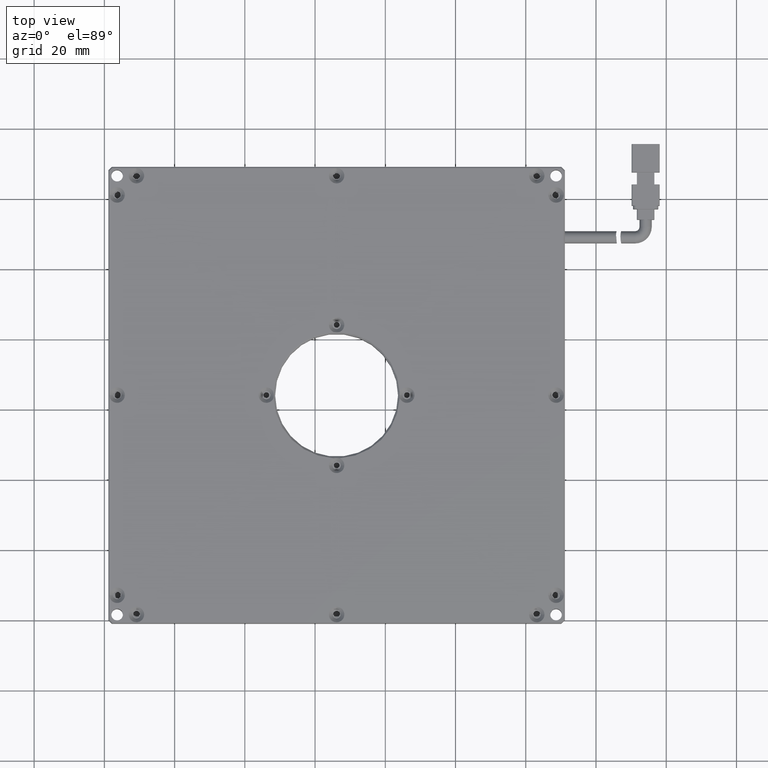
[diagram: clean part render]
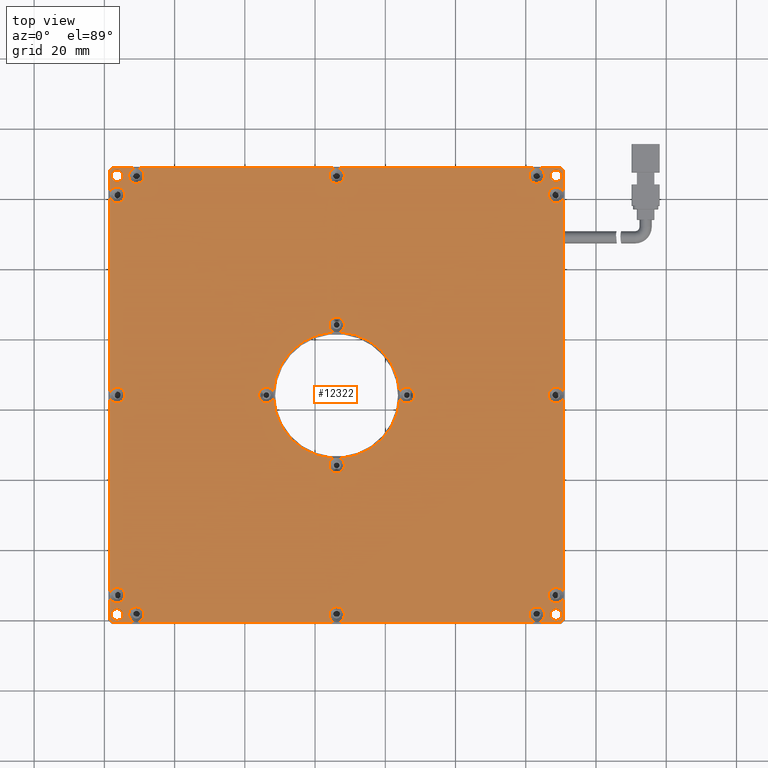
[diagram: same view with one face highlighted and labeled with its STEP entity id]
A machine part, top view. The second image highlights one B-rep face of the part: STEP entity #12322.
In plain terms, the highlighted planar face has unit normal (0, 0, -1).
Its self-contained STEP definition (entity closure, byte-faithful):
#29 = CARTESIAN_POINT ( 'NONE',  ( 85.32907407410438300, -38.44055555555553400, 6.000000000078217400 ) ) ;
#59 = CARTESIAN_POINT ( 'NONE',  ( 25.25984510544070000, 6.080444444440537700, 5.999999999985513800 ) ) ;
#64 = CARTESIAN_POINT ( 'NONE',  ( 80.92907407404379700, 86.55944444444446600, 6.000000000078217400 ) ) ;
#68 = CARTESIAN_POINT ( 'NONE',  ( 26.12907407407409700, 24.05944444444445900, 5.999999999999998200 ) ) ;
#199 = ORIENTED_EDGE ( 'NONE', *, *, #11405, .F. ) ;
#296 = FACE_BOUND ( 'NONE', #18848, .T. ) ;
#378 = CARTESIAN_POINT ( 'NONE',  ( 90.82907407403116900, -32.94055555555552700, 6.000000000021374000 ) ) ;
#404 = VERTEX_POINT ( 'NONE', #8229 ) ;
#443 = VERTEX_POINT ( 'NONE', #9758 ) ;
#458 = AXIS2_PLACEMENT_3D ( 'NONE', #17182, #20143, #18629 ) ;
#460 = ORIENTED_EDGE ( 'NONE', *, *, #6011, .T. ) ;
#509 = ORIENTED_EDGE ( 'NONE', *, *, #10038, .F. ) ;
#591 = CIRCLE ( 'NONE', #13287, 1.649999999999984800 ) ;
#594 = VERTEX_POINT ( 'NONE', #15227 ) ;
#614 = ORIENTED_EDGE ( 'NONE', *, *, #16570, .F. ) ;
#703 = DIRECTION ( 'NONE',  ( 1.000000000000000000, 0.0000000000000000000, 0.0000000000000000000 ) ) ;
#713 = EDGE_CURVE ( 'NONE', #7766, #11958, #7989, .T. ) ;
#726 = CARTESIAN_POINT ( 'NONE',  ( 88.62907407407409700, 86.55944444444446600, 6.000000000000000000 ) ) ;
#728 = ORIENTED_EDGE ( 'NONE', *, *, #713, .T. ) ;
#739 = AXIS2_PLACEMENT_3D ( 'NONE', #11501, #17823, #8267 ) ;
#761 = CARTESIAN_POINT ( 'NONE',  ( -30.87092592592590600, -36.24055555561483300, 6.000000000021374000 ) ) ;
#765 = CARTESIAN_POINT ( 'NONE',  ( -38.87092592592590300, -40.64055555555553700, 6.000000000000000000 ) ) ;
#780 = CARTESIAN_POINT ( 'NONE',  ( 26.12907407407409700, 24.05944444444445900, 5.999999999999998200 ) ) ;
#829 = AXIS2_PLACEMENT_3D ( 'NONE', #19147, #11381, #14549 ) ;
#912 = CARTESIAN_POINT ( 'NONE',  ( -36.37092592592590300, -32.94055555555552700, 5.999999999964530600 ) ) ;
#929 = DIRECTION ( 'NONE',  ( 0.0000000000000000000, -0.0000000000000000000, 1.000000000000000000 ) ) ;
#1036 = DIRECTION ( 'NONE',  ( 0.0000000000000000000, -1.000000000000000000, 0.0000000000000000000 ) ) ;
#1120 = AXIS2_PLACEMENT_3D ( 'NONE', #4726, #14019, #15505 ) ;
#1124 = EDGE_CURVE ( 'NONE', #11335, #14701, #4009, .T. ) ;
#1241 = CIRCLE ( 'NONE', #1748, 2.199999999975249300 ) ;
#1271 = CARTESIAN_POINT ( 'NONE',  ( -36.37092592592590300, 24.05944444444447300, 5.999999999964530600 ) ) ;
#1285 = EDGE_CURVE ( 'NONE', #15990, #7743, #19462, .T. ) ;
#1289 = CIRCLE ( 'NONE', #3691, 2.199999999957083400 ) ;
#1316 = ORIENTED_EDGE ( 'NONE', *, *, #12940, .F. ) ;
#1334 = DIRECTION ( 'NONE',  ( 0.0000000000000000000, -0.0000000000000000000, 1.000000000000000000 ) ) ;
#1403 = VERTEX_POINT ( 'NONE', #18159 ) ;
#1429 = CIRCLE ( 'NONE', #17567, 2.199999999957069600 ) ;
#1460 = CARTESIAN_POINT ( 'NONE',  ( 26.12907407407409700, 88.75944444440153800, 5.999999999964530600 ) ) ;
#1466 = VERTEX_POINT ( 'NONE', #9219 ) ;
#1488 = EDGE_CURVE ( 'NONE', #17285, #3581, #5190, .T. ) ;
#1586 = EDGE_LOOP ( 'NONE', ( #4752, #11474 ) ) ;
#1624 = EDGE_CURVE ( 'NONE', #17104, #594, #14493, .T. ) ;
#1730 = ORIENTED_EDGE ( 'NONE', *, *, #17249, .T. ) ;
#1748 = AXIS2_PLACEMENT_3D ( 'NONE', #14065, #7855, #10885 ) ;
#1796 = AXIS2_PLACEMENT_3D ( 'NONE', #2413, #7110, #8688 ) ;
#1809 = EDGE_CURVE ( 'NONE', #11241, #14104, #2240, .T. ) ;
#1815 = VERTEX_POINT ( 'NONE', #3521 ) ;
#1838 = DIRECTION ( 'NONE',  ( 0.0000000000000000000, 4.928191693248779800E-017, 1.000000000000000000 ) ) ;
#1846 = ORIENTED_EDGE ( 'NONE', *, *, #7084, .F. ) ;
#1933 = EDGE_CURVE ( 'NONE', #13964, #15921, #7552, .T. ) ;
#1986 = DIRECTION ( 'NONE',  ( 0.0000000000000000000, 4.928191693171372200E-017, 1.000000000000000000 ) ) ;
#2000 = FACE_BOUND ( 'NONE', #18778, .T. ) ;
#2014 = AXIS2_PLACEMENT_3D ( 'NONE', #4021, #4234, #4166 ) ;
#2077 = CARTESIAN_POINT ( 'NONE',  ( 90.82907407403116900, 81.05944444444446600, 6.000000000021374000 ) ) ;
#2179 = EDGE_CURVE ( 'NONE', #16334, #14212, #2986, .T. ) ;
#2240 = CIRCLE ( 'NONE', #16961, 2.199999999957069600 ) ;
#2268 = DIRECTION ( 'NONE',  ( 0.0000000000000000000, -0.0000000000000000000, 1.000000000000000000 ) ) ;
#2283 = DIRECTION ( 'NONE',  ( 0.0000000000000000000, -1.000000000000000000, 0.0000000000000000000 ) ) ;
#2314 = DIRECTION ( 'NONE',  ( 0.0000000000000000000, 0.0000000000000000000, -1.000000000000000000 ) ) ;
#2354 = CARTESIAN_POINT ( 'NONE',  ( 88.62907407407409700, -32.94055555555552700, 6.000000000021374000 ) ) ;
#2368 = LINE ( 'NONE', #19596, #18539 ) ;
#2400 = ORIENTED_EDGE ( 'NONE', *, *, #1809, .F. ) ;
#2413 = CARTESIAN_POINT ( 'NONE',  ( -30.87092592592590600, 86.55944444444446600, 6.000000000021374000 ) ) ;
#2415 = DIRECTION ( 'NONE',  ( 0.0000000000000000000, 4.928191693248764300E-017, 1.000000000000000000 ) ) ;
#2422 = ORIENTED_EDGE ( 'NONE', *, *, #13005, .F. ) ;
#2492 = EDGE_CURVE ( 'NONE', #9318, #1815, #9347, .T. ) ;
#2504 = DIRECTION ( 'NONE',  ( 1.000000000000000000, 0.0000000000000000000, 0.0000000000000000000 ) ) ;
#2509 = FACE_BOUND ( 'NONE', #12178, .T. ) ;
#2511 = LINE ( 'NONE', #8801, #2735 ) ;
#2512 = AXIS2_PLACEMENT_3D ( 'NONE', #780, #19546, #14813 ) ;
#2606 = EDGE_CURVE ( 'NONE', #2982, #6778, #6881, .T. ) ;
#2675 = DIRECTION ( 'NONE',  ( 0.0000000000000000000, 4.928191693466765400E-017, 1.000000000000000000 ) ) ;
#2680 = CARTESIAN_POINT ( 'NONE',  ( -36.37092592592590300, 81.05944444444446600, 5.999999999964530600 ) ) ;
#2689 = CARTESIAN_POINT ( 'NONE',  ( 90.00481000536224500, 88.75944444444446900, 5.999999999999995600 ) ) ;
#2735 = VECTOR ( 'NONE', #14967, 1000.000000000000100 ) ;
#2744 = DIRECTION ( 'NONE',  ( 0.0000000000000000000, 4.928191693248764300E-017, 1.000000000000000000 ) ) ;
#2772 = DIRECTION ( 'NONE',  ( 0.0000000000000000000, 0.0000000000000000000, -1.000000000000000000 ) ) ;
#2794 = CIRCLE ( 'NONE', #9668, 1.649999999999991700 ) ;
#2795 = AXIS2_PLACEMENT_3D ( 'NONE', #18233, #2744, #10609 ) ;
#2824 = EDGE_LOOP ( 'NONE', ( #11959, #14882 ) ) ;
#2859 = AXIS2_PLACEMENT_3D ( 'NONE', #912, #5531, #10003 ) ;
#2908 = VERTEX_POINT ( 'NONE', #15716 ) ;
#2919 = DIRECTION ( 'NONE',  ( 0.0000000000000000000, -1.000000000000000000, 0.0000000000000000000 ) ) ;
#2930 = DIRECTION ( 'NONE',  ( 0.0000000000000000000, -0.0000000000000000000, 1.000000000000000000 ) ) ;
#2974 = CIRCLE ( 'NONE', #12922, 2.199999999957069600 ) ;
#2982 = VERTEX_POINT ( 'NONE', #378 ) ;
#2986 = CIRCLE ( 'NONE', #9876, 2.200000000013913000 ) ;
#3014 = DIRECTION ( 'NONE',  ( 0.0000000000000000000, 0.0000000000000000000, -1.000000000000000000 ) ) ;
#3107 = CIRCLE ( 'NONE', #14087, 2.199999999940700900 ) ;
#3150 = AXIS2_PLACEMENT_3D ( 'NONE', #68, #17320, #7899 ) ;
#3226 = ORIENTED_EDGE ( 'NONE', *, *, #19815, .F. ) ;
#3316 = CARTESIAN_POINT ( 'NONE',  ( -37.74666185721396500, -40.64055555555553700, 6.000000000000000000 ) ) ;
#3347 = EDGE_CURVE ( 'NONE', #14224, #18614, #14199, .T. ) ;
#3403 = CARTESIAN_POINT ( 'NONE',  ( 26.12907407407409700, 24.05944444444445900, 6.000000000000001800 ) ) ;
#3477 = ORIENTED_EDGE ( 'NONE', *, *, #1285, .F. ) ;
#3521 = CARTESIAN_POINT ( 'NONE',  ( 26.99830304270746200, 6.080444444440537700, 5.999999999985513800 ) ) ;
#3581 = VERTEX_POINT ( 'NONE', #18597 ) ;
#3586 = CARTESIAN_POINT ( 'NONE',  ( -36.37092592592590300, 24.05944444444447300, 5.999999999964530600 ) ) ;
#3604 = CARTESIAN_POINT ( 'NONE',  ( 26.12907407407411100, 44.05944444444446600, 5.999999999964530600 ) ) ;
#3617 = VERTEX_POINT ( 'NONE', #29 ) ;
#3691 = AXIS2_PLACEMENT_3D ( 'NONE', #5108, #8262, #15812 ) ;
#3736 = CARTESIAN_POINT ( 'NONE',  ( -36.37092592592590300, -38.44055555555552700, 6.000000000000000000 ) ) ;
#3798 = CARTESIAN_POINT ( 'NONE',  ( -38.57092592592590600, 89.05944444444446600, 6.000000000000000000 ) ) ;
#3824 = CARTESIAN_POINT ( 'NONE',  ( 26.12907407407409700, 84.35944444448739400, 5.999999999964530600 ) ) ;
#3852 = EDGE_LOOP ( 'NONE', ( #6159, #9955, #10742, #19626, #18019, #614, #16471, #16150, #11622, #11742, #5141, #199, #15466, #8159, #1846 ) ) ;
#3935 = DIRECTION ( 'NONE',  ( 0.0000000000000000000, -1.000000000000000000, 0.0000000000000000000 ) ) ;
#3967 = AXIS2_PLACEMENT_3D ( 'NONE', #3736, #2314, #14775 ) ;
#3999 = EDGE_CURVE ( 'NONE', #14396, #17104, #15471, .T. ) ;
#4009 = CIRCLE ( 'NONE', #19588, 18.00000000000000400 ) ;
#4021 = CARTESIAN_POINT ( 'NONE',  ( 26.12907407407408300, 4.059444444444455500, 5.999999999964530600 ) ) ;
#4036 = EDGE_CURVE ( 'NONE', #3581, #8678, #6631, .T. ) ;
#4053 = DIRECTION ( 'NONE',  ( 1.000000000000000000, 0.0000000000000000000, 0.0000000000000000000 ) ) ;
#4083 = AXIS2_PLACEMENT_3D ( 'NONE', #6381, #4734, #14223 ) ;
#4163 = EDGE_CURVE ( 'NONE', #14104, #11241, #2974, .T. ) ;
#4166 = DIRECTION ( 'NONE',  ( 1.000000000000000000, 0.0000000000000000000, 0.0000000000000000000 ) ) ;
#4234 = DIRECTION ( 'NONE',  ( 0.0000000000000000000, -0.0000000000000000000, 1.000000000000000000 ) ) ;
#4255 = CARTESIAN_POINT ( 'NONE',  ( 88.62907407407409700, 24.05944444444447300, 6.000000000021374000 ) ) ;
#4291 = CARTESIAN_POINT ( 'NONE',  ( 88.62907407407409700, 86.55944444444446600, 6.000000000000000000 ) ) ;
#4334 = DIRECTION ( 'NONE',  ( 1.000000000000000000, 0.0000000000000000000, 0.0000000000000000000 ) ) ;
#4342 = EDGE_LOOP ( 'NONE', ( #17354, #7918 ) ) ;
#4370 = VERTEX_POINT ( 'NONE', #1460 ) ;
#4412 = DIRECTION ( 'NONE',  ( 1.000000000000000000, 0.0000000000000000000, 0.0000000000000000000 ) ) ;
#4413 = AXIS2_PLACEMENT_3D ( 'NONE', #19612, #2268, #10209 ) ;
#4446 = FACE_BOUND ( 'NONE', #18752, .T. ) ;
#4535 = VERTEX_POINT ( 'NONE', #16255 ) ;
#4726 = CARTESIAN_POINT ( 'NONE',  ( 46.12907407407409700, 24.05944444444465400, 6.000000000021374000 ) ) ;
#4734 = DIRECTION ( 'NONE',  ( 0.0000000000000000000, 0.0000000000000000000, -1.000000000000000000 ) ) ;
#4752 = ORIENTED_EDGE ( 'NONE', *, *, #11689, .T. ) ;
#4796 = PLANE ( 'NONE',  #4083 ) ;
#4873 = DIRECTION ( 'NONE',  ( 1.000000000000000000, 0.0000000000000000000, 0.0000000000000000000 ) ) ;
#4910 = FACE_BOUND ( 'NONE', #10700, .T. ) ;
#4989 = ORIENTED_EDGE ( 'NONE', *, *, #17796, .T. ) ;
#4993 = CIRCLE ( 'NONE', #2512, 18.00000000000000400 ) ;
#5099 = DIRECTION ( 'NONE',  ( 0.7071067811865441300, -0.7071067811865510100, -0.0000000000000000000 ) ) ;
#5108 = CARTESIAN_POINT ( 'NONE',  ( 26.12907407407408300, 4.059444444444455500, 5.999999999964530600 ) ) ;
#5141 = ORIENTED_EDGE ( 'NONE', *, *, #18213, .F. ) ;
#5177 = DIRECTION ( 'NONE',  ( 0.0000000000000000000, -1.000000000000000000, 0.0000000000000000000 ) ) ;
#5190 = CIRCLE ( 'NONE', #3150, 18.00000000000000400 ) ;
#5227 = DIRECTION ( 'NONE',  ( 1.000000000000000000, 0.0000000000000000000, 0.0000000000000000000 ) ) ;
#5230 = DIRECTION ( 'NONE',  ( -0.7071067811865474600, 0.7071067811865474600, -0.0000000000000000000 ) ) ;
#5278 = VERTEX_POINT ( 'NONE', #16092 ) ;
#5306 = EDGE_CURVE ( 'NONE', #12405, #5278, #7522, .T. ) ;
#5357 = CARTESIAN_POINT ( 'NONE',  ( 6.129074074074106100, 24.05944444444440600, 6.000000000021374000 ) ) ;
#5382 = CARTESIAN_POINT ( 'NONE',  ( -37.74666185721397900, 88.75944444444446900, 6.000000000000000000 ) ) ;
#5433 = VERTEX_POINT ( 'NONE', #3824 ) ;
#5476 = ORIENTED_EDGE ( 'NONE', *, *, #14364, .F. ) ;
#5480 = CARTESIAN_POINT ( 'NONE',  ( 86.42907407411702500, 81.05944444444446600, 6.000000000021374000 ) ) ;
#5488 = DIRECTION ( 'NONE',  ( 0.0000000000000000000, -0.0000000000000000000, 1.000000000000000000 ) ) ;
#5529 = CIRCLE ( 'NONE', #1120, 2.200000000052562600 ) ;
#5531 = DIRECTION ( 'NONE',  ( 0.0000000000000000000, -0.0000000000000000000, 1.000000000000000000 ) ) ;
#5637 = AXIS2_PLACEMENT_3D ( 'NONE', #2680, #16671, #12267 ) ;
#5821 = VERTEX_POINT ( 'NONE', #9422 ) ;
#5852 = AXIS2_PLACEMENT_3D ( 'NONE', #3586, #11400, #5227 ) ;
#5920 = DIRECTION ( 'NONE',  ( 0.0000000000000000000, -0.0000000000000000000, 1.000000000000000000 ) ) ;
#5930 = CARTESIAN_POINT ( 'NONE',  ( 90.82907407407410000, -39.81629148684358900, 6.000000000000000000 ) ) ;
#5949 = DIRECTION ( 'NONE',  ( 1.000000000000000000, 0.0000000000000000000, 0.0000000000000000000 ) ) ;
#5974 = CARTESIAN_POINT ( 'NONE',  ( 28.32907407403116600, 44.05944444444446600, 5.999999999964530600 ) ) ;
#5987 = VERTEX_POINT ( 'NONE', #13199 ) ;
#6011 = EDGE_CURVE ( 'NONE', #10887, #1466, #11915, .T. ) ;
#6159 = ORIENTED_EDGE ( 'NONE', *, *, #1124, .F. ) ;
#6264 = CARTESIAN_POINT ( 'NONE',  ( 90.82907407407410000, -39.81629148684358200, 6.000000000000001800 ) ) ;
#6378 = EDGE_CURVE ( 'NONE', #10195, #6599, #591, .T. ) ;
#6381 = CARTESIAN_POINT ( 'NONE',  ( -38.87092592592590300, 89.05944444444446600, 6.000000000000000000 ) ) ;
#6400 = AXIS2_PLACEMENT_3D ( 'NONE', #726, #14839, #19575 ) ;
#6550 = DIRECTION ( 'NONE',  ( 0.0000000000000000000, 0.0000000000000000000, -1.000000000000000000 ) ) ;
#6562 = ORIENTED_EDGE ( 'NONE', *, *, #19666, .F. ) ;
#6599 = VERTEX_POINT ( 'NONE', #11526 ) ;
#6611 = CIRCLE ( 'NONE', #14092, 2.199999999957069600 ) ;
#6618 = AXIS2_PLACEMENT_3D ( 'NONE', #2354, #14873, #703 ) ;
#6631 = CIRCLE ( 'NONE', #14774, 2.199999999975249300 ) ;
#6638 = FACE_BOUND ( 'NONE', #2824, .T. ) ;
#6664 = ORIENTED_EDGE ( 'NONE', *, *, #14044, .F. ) ;
#6691 = DIRECTION ( 'NONE',  ( 0.0000000000000000000, -1.000000000000000000, 0.0000000000000000000 ) ) ;
#6778 = VERTEX_POINT ( 'NONE', #15344 ) ;
#6881 = CIRCLE ( 'NONE', #15643, 2.199999999957069600 ) ;
#6904 = CIRCLE ( 'NONE', #15961, 18.00000000000001400 ) ;
#6933 = CARTESIAN_POINT ( 'NONE',  ( 86.97907407407410600, 86.55944444444446600, 6.000000000000000000 ) ) ;
#6941 = ORIENTED_EDGE ( 'NONE', *, *, #13416, .T. ) ;
#7056 = ORIENTED_EDGE ( 'NONE', *, *, #12199, .T. ) ;
#7084 = EDGE_CURVE ( 'NONE', #14701, #11044, #1289, .T. ) ;
#7110 = DIRECTION ( 'NONE',  ( 0.0000000000000000000, 4.928191693248779800E-017, 1.000000000000000000 ) ) ;
#7134 = FACE_BOUND ( 'NONE', #1586, .T. ) ;
#7188 = CIRCLE ( 'NONE', #6618, 2.199999999957069600 ) ;
#7189 = CIRCLE ( 'NONE', #16555, 1.649999999999991700 ) ;
#7220 = ORIENTED_EDGE ( 'NONE', *, *, #3347, .F. ) ;
#7252 = CARTESIAN_POINT ( 'NONE',  ( -36.37092592592590300, -38.44055555555552700, 6.000000000000000000 ) ) ;
#7258 = CARTESIAN_POINT ( 'NONE',  ( 88.62907407407409700, 81.05944444444446600, 6.000000000021374000 ) ) ;
#7393 = DIRECTION ( 'NONE',  ( 0.0000000000000000000, -0.0000000000000000000, 1.000000000000000000 ) ) ;
#7413 = VERTEX_POINT ( 'NONE', #10274 ) ;
#7522 = CIRCLE ( 'NONE', #15595, 2.199999999940693800 ) ;
#7535 = EDGE_CURVE ( 'NONE', #5821, #3617, #10344, .T. ) ;
#7552 = CIRCLE ( 'NONE', #3967, 1.649999999999991700 ) ;
#7625 = AXIS2_PLACEMENT_3D ( 'NONE', #19188, #1986, #6691 ) ;
#7674 = ORIENTED_EDGE ( 'NONE', *, *, #7535, .F. ) ;
#7691 = DIRECTION ( 'NONE',  ( 0.0000000000000000000, 4.928191693466765400E-017, 1.000000000000000000 ) ) ;
#7695 = CARTESIAN_POINT ( 'NONE',  ( 46.12907407407409700, 24.05944444444465400, 6.000000000021374000 ) ) ;
#7743 = VERTEX_POINT ( 'NONE', #19637 ) ;
#7755 = EDGE_CURVE ( 'NONE', #7413, #443, #6611, .T. ) ;
#7766 = VERTEX_POINT ( 'NONE', #2689 ) ;
#7804 = CARTESIAN_POINT ( 'NONE',  ( 88.62907407407409700, -38.44055555555552700, 6.000000000000000000 ) ) ;
#7812 = CARTESIAN_POINT ( 'NONE',  ( 28.32907407403116600, 4.059444444444455500, 5.999999999964530600 ) ) ;
#7840 = FACE_BOUND ( 'NONE', #15467, .T. ) ;
#7855 = DIRECTION ( 'NONE',  ( 0.0000000000000000000, 4.928191693171372200E-017, 1.000000000000000000 ) ) ;
#7899 = DIRECTION ( 'NONE',  ( 1.000000000000000000, 0.0000000000000000000, 0.0000000000000000000 ) ) ;
#7913 = DIRECTION ( 'NONE',  ( 1.000000000000000000, 0.0000000000000000000, 0.0000000000000000000 ) ) ;
#7918 = ORIENTED_EDGE ( 'NONE', *, *, #14659, .F. ) ;
#7927 = AXIS2_PLACEMENT_3D ( 'NONE', #12380, #7691, #16975 ) ;
#7964 = EDGE_CURVE ( 'NONE', #14070, #13206, #17644, .T. ) ;
#7989 = LINE ( 'NONE', #15486, #13937 ) ;
#8037 = CARTESIAN_POINT ( 'NONE',  ( 44.10807407406386500, 24.92867341319313800, 6.000000000002483300 ) ) ;
#8051 = VECTOR ( 'NONE', #11790, 1000.000000000000000 ) ;
#8062 = EDGE_CURVE ( 'NONE', #18836, #11335, #11478, .T. ) ;
#8103 = VECTOR ( 'NONE', #5099, 999.9999999999998900 ) ;
#8112 = FACE_BOUND ( 'NONE', #12209, .T. ) ;
#8118 = CIRCLE ( 'NONE', #11527, 2.199999999957055900 ) ;
#8159 = ORIENTED_EDGE ( 'NONE', *, *, #16851, .F. ) ;
#8229 = CARTESIAN_POINT ( 'NONE',  ( 48.32907407412666600, 24.05944444444465400, 6.000000000021374000 ) ) ;
#8262 = DIRECTION ( 'NONE',  ( 0.0000000000000000000, -0.0000000000000000000, 1.000000000000000000 ) ) ;
#8267 = DIRECTION ( 'NONE',  ( 1.000000000000000000, 0.0000000000000000000, 0.0000000000000000000 ) ) ;
#8348 = EDGE_CURVE ( 'NONE', #3617, #5821, #12448, .T. ) ;
#8354 = FACE_BOUND ( 'NONE', #17259, .T. ) ;
#8439 = DIRECTION ( 'NONE',  ( 1.000000000000000000, 0.0000000000000000000, 0.0000000000000000000 ) ) ;
#8476 = CIRCLE ( 'NONE', #16621, 2.199999999957055900 ) ;
#8524 = EDGE_LOOP ( 'NONE', ( #7220, #3226 ) ) ;
#8617 = CARTESIAN_POINT ( 'NONE',  ( 25.25984510544075700, 42.03844444444839500, 5.999999999985519100 ) ) ;
#8678 = VERTEX_POINT ( 'NONE', #9902 ) ;
#8688 = DIRECTION ( 'NONE',  ( 0.0000000000000000000, -1.000000000000000000, 0.0000000000000000000 ) ) ;
#8718 = DIRECTION ( 'NONE',  ( 0.0000000000000000000, 0.0000000000000000000, -1.000000000000000000 ) ) ;
#8782 = DIRECTION ( 'NONE',  ( 1.000000000000000000, 0.0000000000000000000, 0.0000000000000000000 ) ) ;
#8801 = CARTESIAN_POINT ( 'NONE',  ( -38.57092592592590600, 87.93518037573255700, 6.000000000000000000 ) ) ;
#8820 = DIRECTION ( 'NONE',  ( 1.000000000000000000, 0.0000000000000000000, 0.0000000000000000000 ) ) ;
#9055 = AXIS2_PLACEMENT_3D ( 'NONE', #14795, #13300, #14664 ) ;
#9186 = EDGE_CURVE ( 'NONE', #17171, #17609, #16347, .T. ) ;
#9210 = ORIENTED_EDGE ( 'NONE', *, *, #6378, .T. ) ;
#9219 = CARTESIAN_POINT ( 'NONE',  ( 90.27907407407407400, 86.55944444444446600, 6.000000000000000000 ) ) ;
#9222 = CARTESIAN_POINT ( 'NONE',  ( -36.37092592592590300, 86.55944444444446600, 6.000000000000000000 ) ) ;
#9291 = AXIS2_PLACEMENT_3D ( 'NONE', #13548, #16554, #18189 ) ;
#9318 = VERTEX_POINT ( 'NONE', #7812 ) ;
#9347 = CIRCLE ( 'NONE', #2014, 2.199999999957083400 ) ;
#9422 = CARTESIAN_POINT ( 'NONE',  ( 80.92907407404379700, -38.44055555555553400, 6.000000000078217400 ) ) ;
#9504 = ORIENTED_EDGE ( 'NONE', *, *, #11500, .F. ) ;
#9534 = ORIENTED_EDGE ( 'NONE', *, *, #12976, .F. ) ;
#9544 = DIRECTION ( 'NONE',  ( 0.0000000000000000000, -0.0000000000000000000, 1.000000000000000000 ) ) ;
#9545 = VERTEX_POINT ( 'NONE', #12212 ) ;
#9558 = DIRECTION ( 'NONE',  ( 0.0000000000000000000, -0.0000000000000000000, 1.000000000000000000 ) ) ;
#9586 = ORIENTED_EDGE ( 'NONE', *, *, #4163, .F. ) ;
#9668 = AXIS2_PLACEMENT_3D ( 'NONE', #7252, #8718, #2504 ) ;
#9705 = VECTOR ( 'NONE', #15374, 1000.000000000000100 ) ;
#9750 = VECTOR ( 'NONE', #5230, 1000.000000000000100 ) ;
#9758 = CARTESIAN_POINT ( 'NONE',  ( 90.82907407403116900, 24.05944444444447300, 6.000000000021374000 ) ) ;
#9856 = CARTESIAN_POINT ( 'NONE',  ( -30.87092592592590600, 86.55944444444446600, 6.000000000021374000 ) ) ;
#9876 = AXIS2_PLACEMENT_3D ( 'NONE', #1271, #1334, #12296 ) ;
#9902 = CARTESIAN_POINT ( 'NONE',  ( 6.129074074074106100, 26.25944444441965300, 6.000000000021374000 ) ) ;
#9955 = ORIENTED_EDGE ( 'NONE', *, *, #8062, .F. ) ;
#10003 = DIRECTION ( 'NONE',  ( 1.000000000000000000, 0.0000000000000000000, 0.0000000000000000000 ) ) ;
#10038 = EDGE_CURVE ( 'NONE', #5278, #12405, #11317, .T. ) ;
#10140 = CIRCLE ( 'NONE', #739, 2.200000000030288800 ) ;
#10195 = VERTEX_POINT ( 'NONE', #16727 ) ;
#10209 = DIRECTION ( 'NONE',  ( 1.000000000000000000, 0.0000000000000000000, 0.0000000000000000000 ) ) ;
#10274 = CARTESIAN_POINT ( 'NONE',  ( 86.42907407411702500, 24.05944444444447300, 6.000000000021374000 ) ) ;
#10344 = CIRCLE ( 'NONE', #829, 2.200000000030288800 ) ;
#10372 = CARTESIAN_POINT ( 'NONE',  ( 26.12907407407408300, 4.059444444444455500, 5.999999999964530600 ) ) ;
#10405 = EDGE_CURVE ( 'NONE', #17048, #12674, #12464, .T. ) ;
#10540 = CARTESIAN_POINT ( 'NONE',  ( 26.12907407407409700, -38.44055555555552700, 5.999999999964530600 ) ) ;
#10609 = DIRECTION ( 'NONE',  ( 0.0000000000000000000, -1.000000000000000000, 0.0000000000000000000 ) ) ;
#10632 = EDGE_CURVE ( 'NONE', #5433, #4370, #1429, .T. ) ;
#10700 = EDGE_LOOP ( 'NONE', ( #2400, #9586 ) ) ;
#10742 = ORIENTED_EDGE ( 'NONE', *, *, #17119, .F. ) ;
#10812 = FACE_BOUND ( 'NONE', #15857, .T. ) ;
#10885 = DIRECTION ( 'NONE',  ( 0.0000000000000000000, -1.000000000000000000, 0.0000000000000000000 ) ) ;
#10887 = VERTEX_POINT ( 'NONE', #6933 ) ;
#10957 = CARTESIAN_POINT ( 'NONE',  ( 90.00481000536216000, -40.64055555555554400, 5.999999999999999100 ) ) ;
#11044 = VERTEX_POINT ( 'NONE', #15231 ) ;
#11066 = AXIS2_PLACEMENT_3D ( 'NONE', #18975, #15745, #7913 ) ;
#11074 = EDGE_CURVE ( 'NONE', #13320, #2908, #18293, .T. ) ;
#11227 = CARTESIAN_POINT ( 'NONE',  ( -34.17092592591198800, 24.05944444444447300, 5.999999999964530600 ) ) ;
#11241 = VERTEX_POINT ( 'NONE', #2077 ) ;
#11274 = CARTESIAN_POINT ( 'NONE',  ( 90.00481000536221600, 88.75944444444446900, 6.000000000000000000 ) ) ;
#11280 = EDGE_LOOP ( 'NONE', ( #3477, #9504 ) ) ;
#11305 = FACE_BOUND ( 'NONE', #12359, .T. ) ;
#11317 = CIRCLE ( 'NONE', #1796, 2.199999999940693800 ) ;
#11335 = VERTEX_POINT ( 'NONE', #14537 ) ;
#11381 = DIRECTION ( 'NONE',  ( 0.0000000000000000000, -0.0000000000000000000, 1.000000000000000000 ) ) ;
#11400 = DIRECTION ( 'NONE',  ( 0.0000000000000000000, -0.0000000000000000000, 1.000000000000000000 ) ) ;
#11405 = EDGE_CURVE ( 'NONE', #1815, #17659, #4993, .T. ) ;
#11474 = ORIENTED_EDGE ( 'NONE', *, *, #7964, .T. ) ;
#11478 = CIRCLE ( 'NONE', #7625, 2.199999999975249300 ) ;
#11500 = EDGE_CURVE ( 'NONE', #7743, #15990, #15784, .T. ) ;
#11501 = CARTESIAN_POINT ( 'NONE',  ( 83.12907407407409700, 86.55944444444446600, 6.000000000078217400 ) ) ;
#11526 = CARTESIAN_POINT ( 'NONE',  ( 86.97907407407410600, -38.44055555555552700, 6.000000000000000000 ) ) ;
#11527 = AXIS2_PLACEMENT_3D ( 'NONE', #18938, #9544, #8439 ) ;
#11591 = CARTESIAN_POINT ( 'NONE',  ( -38.02092592592589400, 86.55944444444446600, 6.000000000000000000 ) ) ;
#11622 = ORIENTED_EDGE ( 'NONE', *, *, #14695, .F. ) ;
#11656 = CIRCLE ( 'NONE', #13777, 2.199999999957069600 ) ;
#11689 = EDGE_CURVE ( 'NONE', #13206, #14070, #7189, .T. ) ;
#11724 = ORIENTED_EDGE ( 'NONE', *, *, #15014, .T. ) ;
#11742 = ORIENTED_EDGE ( 'NONE', *, *, #19936, .F. ) ;
#11790 = DIRECTION ( 'NONE',  ( 1.000000000000000000, -0.0000000000000000000, 0.0000000000000000000 ) ) ;
#11851 = CARTESIAN_POINT ( 'NONE',  ( -38.57092592592590600, 87.93518037573255700, 6.000000000000000000 ) ) ;
#11862 = DIRECTION ( 'NONE',  ( 0.0000000000000000000, -1.000000000000000000, 0.0000000000000000000 ) ) ;
#11914 = CARTESIAN_POINT ( 'NONE',  ( -38.57092592593981800, 24.05944444444447300, 5.999999999964530600 ) ) ;
#11915 = CIRCLE ( 'NONE', #6400, 1.649999999999984800 ) ;
#11958 = VERTEX_POINT ( 'NONE', #5382 ) ;
#11959 = ORIENTED_EDGE ( 'NONE', *, *, #14298, .F. ) ;
#12013 = ORIENTED_EDGE ( 'NONE', *, *, #1624, .T. ) ;
#12044 = FACE_BOUND ( 'NONE', #3852, .T. ) ;
#12129 = VERTEX_POINT ( 'NONE', #15445 ) ;
#12132 = AXIS2_PLACEMENT_3D ( 'NONE', #19473, #19541, #14933 ) ;
#12137 = DIRECTION ( 'NONE',  ( -1.000000000000000000, 0.0000000000000000000, -0.0000000000000000000 ) ) ;
#12146 = CIRCLE ( 'NONE', #16413, 2.200000000052562600 ) ;
#12178 = EDGE_LOOP ( 'NONE', ( #9210, #1730 ) ) ;
#12199 = EDGE_CURVE ( 'NONE', #1466, #10887, #15008, .T. ) ;
#12209 = EDGE_LOOP ( 'NONE', ( #7056, #460 ) ) ;
#12212 = CARTESIAN_POINT ( 'NONE',  ( 23.92907407411705400, 44.05944444444446600, 5.999999999964530600 ) ) ;
#12248 = LINE ( 'NONE', #765, #8051 ) ;
#12267 = DIRECTION ( 'NONE',  ( 1.000000000000000000, 0.0000000000000000000, 0.0000000000000000000 ) ) ;
#12268 = CARTESIAN_POINT ( 'NONE',  ( 26.12907407407409700, -40.64055555551259900, 5.999999999964530600 ) ) ;
#12296 = DIRECTION ( 'NONE',  ( 1.000000000000000000, 0.0000000000000000000, 0.0000000000000000000 ) ) ;
#12322 = ADVANCED_FACE ( 'NONE', ( #4446, #14991, #6638, #4910, #296, #12525, #8354, #15228, #10812, #7840, #2000, #15965, #12044, #16960, #7134, #8112, #2509, #11305 ), #4796, .F. ) ;
#12359 = EDGE_LOOP ( 'NONE', ( #16229, #13344 ) ) ;
#12370 = DIRECTION ( 'NONE',  ( 0.0000000000000000000, 4.928191693466765400E-017, 1.000000000000000000 ) ) ;
#12380 = CARTESIAN_POINT ( 'NONE',  ( 26.12907407407409700, 86.55944444444446600, 5.999999999964530600 ) ) ;
#12405 = VERTEX_POINT ( 'NONE', #15846 ) ;
#12448 = CIRCLE ( 'NONE', #458, 2.200000000030288800 ) ;
#12464 = CIRCLE ( 'NONE', #14142, 2.199999999957055900 ) ;
#12497 = CIRCLE ( 'NONE', #19634, 1.649999999999984800 ) ;
#12525 = FACE_BOUND ( 'NONE', #20062, .T. ) ;
#12674 = VERTEX_POINT ( 'NONE', #5974 ) ;
#12922 = AXIS2_PLACEMENT_3D ( 'NONE', #7258, #7393, #4334 ) ;
#12940 = EDGE_CURVE ( 'NONE', #4535, #1403, #19812, .T. ) ;
#12976 = EDGE_CURVE ( 'NONE', #12129, #14453, #3107, .T. ) ;
#13004 = CARTESIAN_POINT ( 'NONE',  ( -34.17092592591198800, 81.05944444444446600, 5.999999999964530600 ) ) ;
#13005 = EDGE_CURVE ( 'NONE', #14453, #12129, #14870, .T. ) ;
#13017 = VECTOR ( 'NONE', #19712, 1000.000000000000000 ) ;
#13052 = CIRCLE ( 'NONE', #7927, 2.199999999957069600 ) ;
#13199 = CARTESIAN_POINT ( 'NONE',  ( 90.82907407407410000, 87.93518037573258500, 6.000000000000000000 ) ) ;
#13206 = VERTEX_POINT ( 'NONE', #18565 ) ;
#13284 = CIRCLE ( 'NONE', #13973, 2.199999999957083400 ) ;
#13287 = AXIS2_PLACEMENT_3D ( 'NONE', #7804, #2772, #15164 ) ;
#13300 = DIRECTION ( 'NONE',  ( 0.0000000000000000000, -0.0000000000000000000, 1.000000000000000000 ) ) ;
#13320 = VERTEX_POINT ( 'NONE', #64 ) ;
#13344 = ORIENTED_EDGE ( 'NONE', *, *, #1933, .T. ) ;
#13416 = EDGE_CURVE ( 'NONE', #17609, #5987, #2368, .T. ) ;
#13548 = CARTESIAN_POINT ( 'NONE',  ( 83.12907407407409700, 86.55944444444446600, 6.000000000078217400 ) ) ;
#13777 = AXIS2_PLACEMENT_3D ( 'NONE', #10540, #2675, #1036 ) ;
#13899 = ORIENTED_EDGE ( 'NONE', *, *, #14844, .F. ) ;
#13904 = ORIENTED_EDGE ( 'NONE', *, *, #7755, .F. ) ;
#13937 = VECTOR ( 'NONE', #12137, 1000.000000000000000 ) ;
#13964 = VERTEX_POINT ( 'NONE', #19058 ) ;
#13973 = AXIS2_PLACEMENT_3D ( 'NONE', #10372, #929, #8782 ) ;
#13985 = DIRECTION ( 'NONE',  ( 1.000000000000000000, 0.0000000000000000000, 0.0000000000000000000 ) ) ;
#14019 = DIRECTION ( 'NONE',  ( 0.0000000000000000000, -0.0000000000000000000, 1.000000000000000000 ) ) ;
#14044 = EDGE_CURVE ( 'NONE', #6778, #2982, #7188, .T. ) ;
#14065 = CARTESIAN_POINT ( 'NONE',  ( 6.129074074074106100, 24.05944444444440600, 6.000000000021374000 ) ) ;
#14070 = VERTEX_POINT ( 'NONE', #11591 ) ;
#14087 = AXIS2_PLACEMENT_3D ( 'NONE', #16594, #2415, #11862 ) ;
#14092 = AXIS2_PLACEMENT_3D ( 'NONE', #4255, #5488, #4053 ) ;
#14104 = VERTEX_POINT ( 'NONE', #5480 ) ;
#14114 = AXIS2_PLACEMENT_3D ( 'NONE', #19623, #17979, #2283 ) ;
#14142 = AXIS2_PLACEMENT_3D ( 'NONE', #3604, #17956, #19321 ) ;
#14199 = CIRCLE ( 'NONE', #14114, 2.199999999957069600 ) ;
#14212 = VERTEX_POINT ( 'NONE', #11227 ) ;
#14223 = DIRECTION ( 'NONE',  ( -1.000000000000000000, 0.0000000000000000000, -0.0000000000000000000 ) ) ;
#14224 = VERTEX_POINT ( 'NONE', #12268 ) ;
#14288 = CIRCLE ( 'NONE', #4413, 2.199999999957069600 ) ;
#14298 = EDGE_CURVE ( 'NONE', #2908, #13320, #10140, .T. ) ;
#14364 = EDGE_CURVE ( 'NONE', #443, #7413, #14288, .T. ) ;
#14396 = VERTEX_POINT ( 'NONE', #11851 ) ;
#14411 = ORIENTED_EDGE ( 'NONE', *, *, #5306, .F. ) ;
#14453 = VERTEX_POINT ( 'NONE', #761 ) ;
#14493 = LINE ( 'NONE', #3316, #8103 ) ;
#14524 = DIRECTION ( 'NONE',  ( 1.000000000000000000, 0.0000000000000000000, 0.0000000000000000000 ) ) ;
#14537 = CARTESIAN_POINT ( 'NONE',  ( 8.150074074061535600, 23.19021547579281500, 6.000000000020566700 ) ) ;
#14549 = DIRECTION ( 'NONE',  ( 1.000000000000000000, 0.0000000000000000000, 0.0000000000000000000 ) ) ;
#14659 = EDGE_CURVE ( 'NONE', #4370, #5433, #13052, .T. ) ;
#14664 = DIRECTION ( 'NONE',  ( 1.000000000000000000, 0.0000000000000000000, 0.0000000000000000000 ) ) ;
#14695 = EDGE_CURVE ( 'NONE', #20087, #17048, #6904, .T. ) ;
#14701 = VERTEX_POINT ( 'NONE', #59 ) ;
#14774 = AXIS2_PLACEMENT_3D ( 'NONE', #5357, #16553, #3935 ) ;
#14775 = DIRECTION ( 'NONE',  ( 1.000000000000000000, 0.0000000000000000000, 0.0000000000000000000 ) ) ;
#14795 = CARTESIAN_POINT ( 'NONE',  ( -36.37092592592590300, 81.05944444444446600, 5.999999999964530600 ) ) ;
#14813 = DIRECTION ( 'NONE',  ( 1.000000000000000000, 0.0000000000000000000, 0.0000000000000000000 ) ) ;
#14839 = DIRECTION ( 'NONE',  ( 0.0000000000000000000, 0.0000000000000000000, -1.000000000000000000 ) ) ;
#14844 = EDGE_CURVE ( 'NONE', #14212, #16334, #17460, .T. ) ;
#14870 = CIRCLE ( 'NONE', #2795, 2.199999999940700900 ) ;
#14873 = DIRECTION ( 'NONE',  ( 0.0000000000000000000, -0.0000000000000000000, 1.000000000000000000 ) ) ;
#14882 = ORIENTED_EDGE ( 'NONE', *, *, #11074, .F. ) ;
#14933 = DIRECTION ( 'NONE',  ( 1.000000000000000000, 0.0000000000000000000, 0.0000000000000000000 ) ) ;
#14940 = ORIENTED_EDGE ( 'NONE', *, *, #2606, .F. ) ;
#14967 = DIRECTION ( 'NONE',  ( -0.7071067811865483500, -0.7071067811865465700, -0.0000000000000000000 ) ) ;
#14991 = FACE_BOUND ( 'NONE', #4342, .T. ) ;
#15008 = CIRCLE ( 'NONE', #18908, 1.649999999999984800 ) ;
#15014 = EDGE_CURVE ( 'NONE', #11958, #14396, #2511, .T. ) ;
#15164 = DIRECTION ( 'NONE',  ( 1.000000000000000000, 0.0000000000000000000, 0.0000000000000000000 ) ) ;
#15171 = CARTESIAN_POINT ( 'NONE',  ( 26.12907407407411100, 44.05944444444446600, 5.999999999964530600 ) ) ;
#15227 = CARTESIAN_POINT ( 'NONE',  ( -37.74666185721395800, -40.64055555555553700, 6.000000000000000000 ) ) ;
#15228 = FACE_BOUND ( 'NONE', #8524, .T. ) ;
#15231 = CARTESIAN_POINT ( 'NONE',  ( 23.92907407411700000, 4.059444444444455500, 5.999999999964530600 ) ) ;
#15328 = ORIENTED_EDGE ( 'NONE', *, *, #3999, .T. ) ;
#15344 = CARTESIAN_POINT ( 'NONE',  ( 86.42907407411702500, -32.94055555555552700, 6.000000000021374000 ) ) ;
#15348 = CARTESIAN_POINT ( 'NONE',  ( 26.99830304270746200, 42.03844444444838000, 5.999999999985517400 ) ) ;
#15374 = DIRECTION ( 'NONE',  ( 0.7071067811865474600, 0.7071067811865474600, -0.0000000000000000000 ) ) ;
#15445 = CARTESIAN_POINT ( 'NONE',  ( -30.87092592592590600, -40.64055555549623500, 6.000000000021374000 ) ) ;
#15466 = ORIENTED_EDGE ( 'NONE', *, *, #2492, .F. ) ;
#15467 = EDGE_LOOP ( 'NONE', ( #1316, #6562 ) ) ;
#15471 = LINE ( 'NONE', #3798, #13017 ) ;
#15486 = CARTESIAN_POINT ( 'NONE',  ( -38.87092592592590300, 88.75944444444446900, 6.000000000000000000 ) ) ;
#15505 = DIRECTION ( 'NONE',  ( 1.000000000000000000, 0.0000000000000000000, 0.0000000000000000000 ) ) ;
#15523 = DIRECTION ( 'NONE',  ( 1.000000000000000000, 0.0000000000000000000, 0.0000000000000000000 ) ) ;
#15543 = CARTESIAN_POINT ( 'NONE',  ( -38.57092592592590600, -39.81629148684361800, 6.000000000000000000 ) ) ;
#15595 = AXIS2_PLACEMENT_3D ( 'NONE', #9856, #1838, #5177 ) ;
#15643 = AXIS2_PLACEMENT_3D ( 'NONE', #16834, #18217, #8820 ) ;
#15668 = CARTESIAN_POINT ( 'NONE',  ( -34.72092592592591100, -38.44055555555552700, 6.000000000000000000 ) ) ;
#15716 = CARTESIAN_POINT ( 'NONE',  ( 85.32907407410438300, 86.55944444444446600, 6.000000000078217400 ) ) ;
#15727 = CARTESIAN_POINT ( 'NONE',  ( 44.10807407406387900, 23.19021547569619900, 6.000000000002481600 ) ) ;
#15745 = DIRECTION ( 'NONE',  ( 0.0000000000000000000, 0.0000000000000000000, -1.000000000000000000 ) ) ;
#15784 = CIRCLE ( 'NONE', #5637, 2.200000000013913000 ) ;
#15812 = DIRECTION ( 'NONE',  ( 1.000000000000000000, 0.0000000000000000000, 0.0000000000000000000 ) ) ;
#15846 = CARTESIAN_POINT ( 'NONE',  ( -30.87092592592590600, 84.35944444450377900, 6.000000000021374000 ) ) ;
#15857 = EDGE_LOOP ( 'NONE', ( #9534, #2422 ) ) ;
#15885 = DIRECTION ( 'NONE',  ( 0.0000000000000000000, 0.0000000000000000000, 1.000000000000000000 ) ) ;
#15921 = VERTEX_POINT ( 'NONE', #15668 ) ;
#15952 = CARTESIAN_POINT ( 'NONE',  ( 88.62907407407409700, -38.44055555555552700, 6.000000000000000000 ) ) ;
#15961 = AXIS2_PLACEMENT_3D ( 'NONE', #20144, #2930, #15523 ) ;
#15965 = FACE_BOUND ( 'NONE', #11280, .T. ) ;
#15990 = VERTEX_POINT ( 'NONE', #13004 ) ;
#15998 = CARTESIAN_POINT ( 'NONE',  ( 88.62907407407409700, 81.05944444444446600, 6.000000000021374000 ) ) ;
#16092 = CARTESIAN_POINT ( 'NONE',  ( -30.87092592592590600, 88.75944444438516700, 6.000000000021374000 ) ) ;
#16150 = ORIENTED_EDGE ( 'NONE', *, *, #10405, .F. ) ;
#16229 = ORIENTED_EDGE ( 'NONE', *, *, #19138, .T. ) ;
#16255 = CARTESIAN_POINT ( 'NONE',  ( -34.17092592591198800, -32.94055555555552700, 5.999999999964530600 ) ) ;
#16334 = VERTEX_POINT ( 'NONE', #11914 ) ;
#16347 = LINE ( 'NONE', #5930, #9705 ) ;
#16413 = AXIS2_PLACEMENT_3D ( 'NONE', #7695, #16917, #5949 ) ;
#16471 = ORIENTED_EDGE ( 'NONE', *, *, #18090, .F. ) ;
#16518 = DIRECTION ( 'NONE',  ( 0.0000000000000000000, 1.000000000000000000, 0.0000000000000000000 ) ) ;
#16553 = DIRECTION ( 'NONE',  ( 0.0000000000000000000, 4.928191693171372200E-017, 1.000000000000000000 ) ) ;
#16554 = DIRECTION ( 'NONE',  ( 0.0000000000000000000, -0.0000000000000000000, 1.000000000000000000 ) ) ;
#16555 = AXIS2_PLACEMENT_3D ( 'NONE', #9222, #3014, #13985 ) ;
#16570 = EDGE_CURVE ( 'NONE', #9545, #17285, #8118, .T. ) ;
#16594 = CARTESIAN_POINT ( 'NONE',  ( -30.87092592592590600, -38.44055555555553400, 6.000000000021374000 ) ) ;
#16615 = ORIENTED_EDGE ( 'NONE', *, *, #2179, .F. ) ;
#16621 = AXIS2_PLACEMENT_3D ( 'NONE', #15171, #5920, #4412 ) ;
#16671 = DIRECTION ( 'NONE',  ( 0.0000000000000000000, -0.0000000000000000000, 1.000000000000000000 ) ) ;
#16727 = CARTESIAN_POINT ( 'NONE',  ( 90.27907407407407400, -38.44055555555552700, 6.000000000000000000 ) ) ;
#16831 = DIRECTION ( 'NONE',  ( 1.000000000000000000, 0.0000000000000000000, 0.0000000000000000000 ) ) ;
#16834 = CARTESIAN_POINT ( 'NONE',  ( 88.62907407407409700, -32.94055555555552700, 6.000000000021374000 ) ) ;
#16851 = EDGE_CURVE ( 'NONE', #11044, #9318, #13284, .T. ) ;
#16869 = CARTESIAN_POINT ( 'NONE',  ( 26.12907407407409700, -36.24055555559845500, 5.999999999964530600 ) ) ;
#16917 = DIRECTION ( 'NONE',  ( 0.0000000000000000000, -0.0000000000000000000, 1.000000000000000000 ) ) ;
#16960 = FACE_OUTER_BOUND ( 'NONE', #20306, .T. ) ;
#16961 = AXIS2_PLACEMENT_3D ( 'NONE', #15998, #9558, #4873 ) ;
#16975 = DIRECTION ( 'NONE',  ( 0.0000000000000000000, -1.000000000000000000, 0.0000000000000000000 ) ) ;
#17034 = DIRECTION ( 'NONE',  ( 0.0000000000000000000, 0.0000000000000000000, -1.000000000000000000 ) ) ;
#17048 = VERTEX_POINT ( 'NONE', #15348 ) ;
#17059 = CIRCLE ( 'NONE', #2859, 2.200000000013913000 ) ;
#17104 = VERTEX_POINT ( 'NONE', #15543 ) ;
#17119 = EDGE_CURVE ( 'NONE', #8678, #18836, #1241, .T. ) ;
#17171 = VERTEX_POINT ( 'NONE', #10957 ) ;
#17182 = CARTESIAN_POINT ( 'NONE',  ( 83.12907407407409700, -38.44055555555553400, 6.000000000078217400 ) ) ;
#17249 = EDGE_CURVE ( 'NONE', #6599, #10195, #12497, .T. ) ;
#17259 = EDGE_LOOP ( 'NONE', ( #17740, #7674 ) ) ;
#17285 = VERTEX_POINT ( 'NONE', #8617 ) ;
#17320 = DIRECTION ( 'NONE',  ( 0.0000000000000000000, -0.0000000000000000000, 1.000000000000000000 ) ) ;
#17330 = EDGE_CURVE ( 'NONE', #594, #17171, #12248, .T. ) ;
#17354 = ORIENTED_EDGE ( 'NONE', *, *, #10632, .F. ) ;
#17460 = CIRCLE ( 'NONE', #5852, 2.200000000013913000 ) ;
#17567 = AXIS2_PLACEMENT_3D ( 'NONE', #18549, #12370, #2919 ) ;
#17609 = VERTEX_POINT ( 'NONE', #6264 ) ;
#17644 = CIRCLE ( 'NONE', #11066, 1.649999999999991700 ) ;
#17659 = VERTEX_POINT ( 'NONE', #15727 ) ;
#17740 = ORIENTED_EDGE ( 'NONE', *, *, #8348, .F. ) ;
#17796 = EDGE_CURVE ( 'NONE', #5987, #7766, #19823, .T. ) ;
#17823 = DIRECTION ( 'NONE',  ( 0.0000000000000000000, -0.0000000000000000000, 1.000000000000000000 ) ) ;
#17904 = CARTESIAN_POINT ( 'NONE',  ( 6.129074074074106100, 21.85944444446915500, 6.000000000021374000 ) ) ;
#17956 = DIRECTION ( 'NONE',  ( 0.0000000000000000000, -0.0000000000000000000, 1.000000000000000000 ) ) ;
#17979 = DIRECTION ( 'NONE',  ( 0.0000000000000000000, 4.928191693466765400E-017, 1.000000000000000000 ) ) ;
#18019 = ORIENTED_EDGE ( 'NONE', *, *, #1488, .F. ) ;
#18090 = EDGE_CURVE ( 'NONE', #12674, #9545, #8476, .T. ) ;
#18159 = CARTESIAN_POINT ( 'NONE',  ( -38.57092592593981800, -32.94055555555552700, 5.999999999964530600 ) ) ;
#18189 = DIRECTION ( 'NONE',  ( 1.000000000000000000, 0.0000000000000000000, 0.0000000000000000000 ) ) ;
#18213 = EDGE_CURVE ( 'NONE', #17659, #404, #5529, .T. ) ;
#18217 = DIRECTION ( 'NONE',  ( 0.0000000000000000000, -0.0000000000000000000, 1.000000000000000000 ) ) ;
#18233 = CARTESIAN_POINT ( 'NONE',  ( -30.87092592592590600, -38.44055555555553400, 6.000000000021374000 ) ) ;
#18293 = CIRCLE ( 'NONE', #9291, 2.200000000030288800 ) ;
#18406 = ORIENTED_EDGE ( 'NONE', *, *, #9186, .T. ) ;
#18539 = VECTOR ( 'NONE', #16518, 1000.000000000000000 ) ;
#18549 = CARTESIAN_POINT ( 'NONE',  ( 26.12907407407409700, 86.55944444444446600, 5.999999999964530600 ) ) ;
#18565 = CARTESIAN_POINT ( 'NONE',  ( -34.72092592592591100, 86.55944444444446600, 6.000000000000000000 ) ) ;
#18597 = CARTESIAN_POINT ( 'NONE',  ( 8.150074074061535600, 24.92867341309596400, 6.000000000020564900 ) ) ;
#18614 = VERTEX_POINT ( 'NONE', #16869 ) ;
#18629 = DIRECTION ( 'NONE',  ( 1.000000000000000000, 0.0000000000000000000, 0.0000000000000000000 ) ) ;
#18752 = EDGE_LOOP ( 'NONE', ( #14411, #509 ) ) ;
#18778 = EDGE_LOOP ( 'NONE', ( #13899, #16615 ) ) ;
#18836 = VERTEX_POINT ( 'NONE', #17904 ) ;
#18848 = EDGE_LOOP ( 'NONE', ( #5476, #13904 ) ) ;
#18908 = AXIS2_PLACEMENT_3D ( 'NONE', #4291, #17034, #16831 ) ;
#18938 = CARTESIAN_POINT ( 'NONE',  ( 26.12907407407411100, 44.05944444444446600, 5.999999999964530600 ) ) ;
#18975 = CARTESIAN_POINT ( 'NONE',  ( -36.37092592592590300, 86.55944444444446600, 6.000000000000000000 ) ) ;
#19058 = CARTESIAN_POINT ( 'NONE',  ( -38.02092592592589400, -38.44055555555552700, 6.000000000000000000 ) ) ;
#19121 = DIRECTION ( 'NONE',  ( 1.000000000000000000, 0.0000000000000000000, 0.0000000000000000000 ) ) ;
#19138 = EDGE_CURVE ( 'NONE', #15921, #13964, #2794, .T. ) ;
#19147 = CARTESIAN_POINT ( 'NONE',  ( 83.12907407407409700, -38.44055555555553400, 6.000000000078217400 ) ) ;
#19188 = CARTESIAN_POINT ( 'NONE',  ( 6.129074074074106100, 24.05944444444440600, 6.000000000021374000 ) ) ;
#19321 = DIRECTION ( 'NONE',  ( 1.000000000000000000, 0.0000000000000000000, 0.0000000000000000000 ) ) ;
#19462 = CIRCLE ( 'NONE', #9055, 2.200000000013913000 ) ;
#19473 = CARTESIAN_POINT ( 'NONE',  ( -36.37092592592590300, -32.94055555555552700, 5.999999999964530600 ) ) ;
#19541 = DIRECTION ( 'NONE',  ( 0.0000000000000000000, -0.0000000000000000000, 1.000000000000000000 ) ) ;
#19546 = DIRECTION ( 'NONE',  ( 0.0000000000000000000, 0.0000000000000000000, 1.000000000000000000 ) ) ;
#19575 = DIRECTION ( 'NONE',  ( 1.000000000000000000, 0.0000000000000000000, 0.0000000000000000000 ) ) ;
#19588 = AXIS2_PLACEMENT_3D ( 'NONE', #3403, #15885, #14524 ) ;
#19596 = CARTESIAN_POINT ( 'NONE',  ( 90.82907407407410000, 89.05944444444446600, 6.000000000000000000 ) ) ;
#19612 = CARTESIAN_POINT ( 'NONE',  ( 88.62907407407409700, 24.05944444444447300, 6.000000000021374000 ) ) ;
#19623 = CARTESIAN_POINT ( 'NONE',  ( 26.12907407407409700, -38.44055555555552700, 5.999999999964530600 ) ) ;
#19626 = ORIENTED_EDGE ( 'NONE', *, *, #4036, .F. ) ;
#19634 = AXIS2_PLACEMENT_3D ( 'NONE', #15952, #6550, #19121 ) ;
#19637 = CARTESIAN_POINT ( 'NONE',  ( -38.57092592593981800, 81.05944444444446600, 5.999999999964530600 ) ) ;
#19666 = EDGE_CURVE ( 'NONE', #1403, #4535, #17059, .T. ) ;
#19712 = DIRECTION ( 'NONE',  ( -0.0000000000000000000, -1.000000000000000000, -0.0000000000000000000 ) ) ;
#19812 = CIRCLE ( 'NONE', #12132, 2.200000000013913000 ) ;
#19815 = EDGE_CURVE ( 'NONE', #18614, #14224, #11656, .T. ) ;
#19823 = LINE ( 'NONE', #11274, #9750 ) ;
#19921 = ORIENTED_EDGE ( 'NONE', *, *, #17330, .T. ) ;
#19936 = EDGE_CURVE ( 'NONE', #404, #20087, #12146, .T. ) ;
#20062 = EDGE_LOOP ( 'NONE', ( #14940, #6664 ) ) ;
#20087 = VERTEX_POINT ( 'NONE', #8037 ) ;
#20143 = DIRECTION ( 'NONE',  ( 0.0000000000000000000, -0.0000000000000000000, 1.000000000000000000 ) ) ;
#20144 = CARTESIAN_POINT ( 'NONE',  ( 26.12907407407409700, 24.05944444444445900, 6.000000000000005300 ) ) ;
#20306 = EDGE_LOOP ( 'NONE', ( #11724, #15328, #12013, #19921, #18406, #6941, #4989, #728 ) ) ;